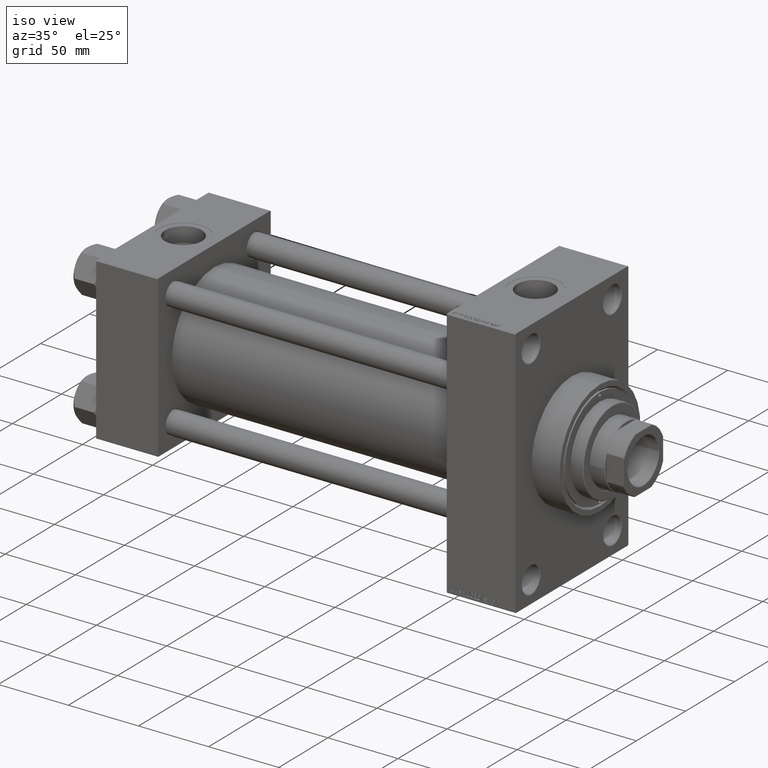
[diagram: clean part render]
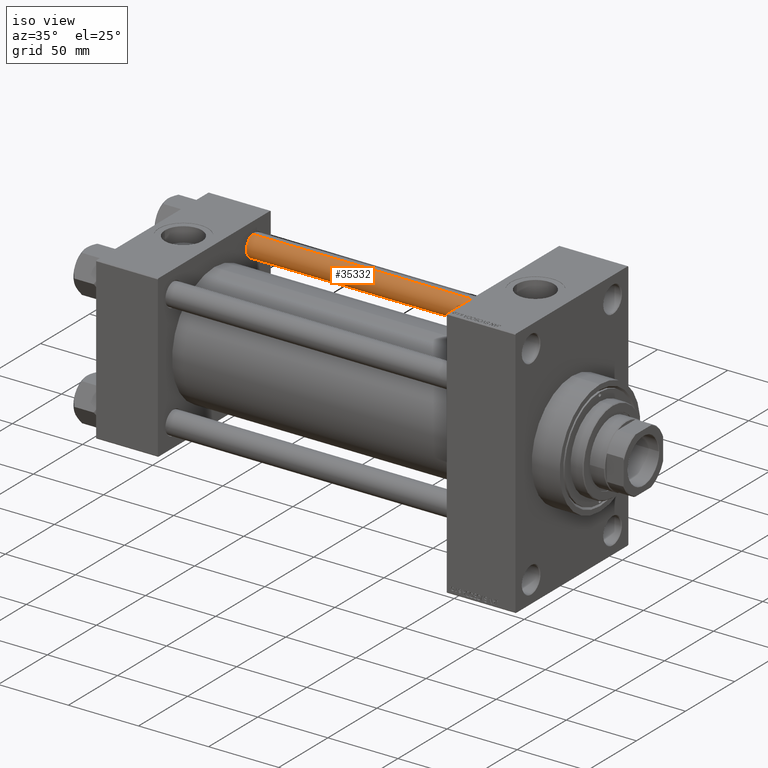
[diagram: same view with one face highlighted and labeled with its STEP entity id]
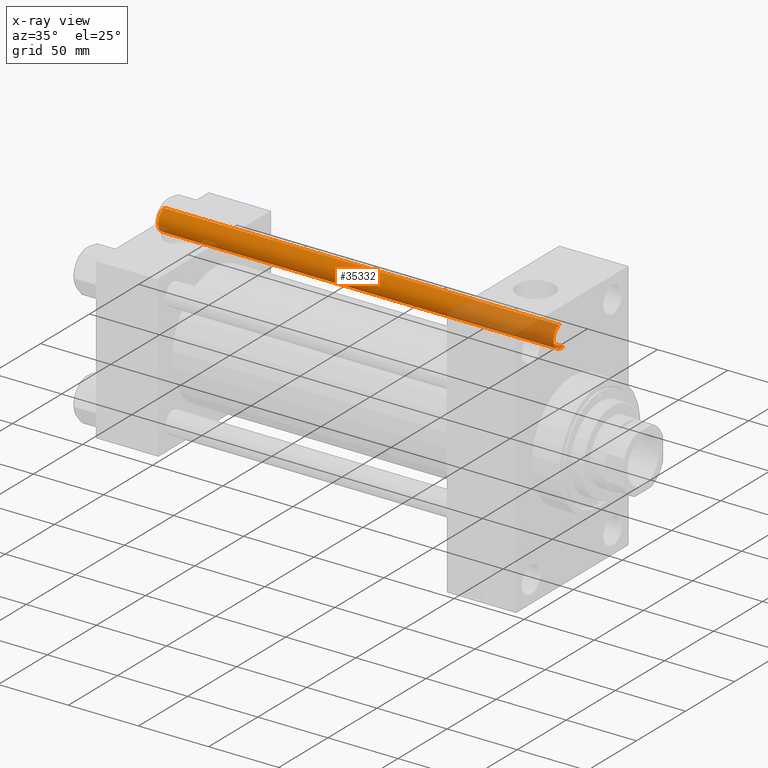
[diagram: x-ray of the same camera — body ghosted, the highlighted face saturated]
A machine part, iso view. The second image highlights one B-rep face of the part: STEP entity #35332.
The next image is the same camera in x-ray: the body ghosted, the highlighted face saturated — about 26% of this face is hidden behind the body in this view.
In plain terms, the highlighted cylindrical surface (edge-blend (fillet) strip) has radius 8 mm, axis along (-1, -0, 0).
Its self-contained STEP definition (entity closure, byte-faithful):
#1303 = DIRECTION ( 'NONE',  ( 1.000000000000000000, 0.000000000000000000, 0.000000000000000000 ) ) ;
#1760 = CARTESIAN_POINT ( 'NONE',  ( 0.000000000000000000, 0.000000000000000000, 0.5000000000000004441 ) ) ;
#3060 = ORIENTED_EDGE ( 'NONE', *, *, #23012, .T. ) ;
#3442 = AXIS2_PLACEMENT_3D ( 'NONE', #19681, #19441, #41739 ) ;
#3703 = CARTESIAN_POINT ( 'NONE',  ( -8.000000000000000000, 0.000000000000000000, 283.0000000000000000 ) ) ;
#3756 = VERTEX_POINT ( 'NONE', #20468 ) ;
#5061 = ORIENTED_EDGE ( 'NONE', *, *, #35858, .T. ) ;
#6770 = EDGE_CURVE ( 'NONE', #44884, #36688, #24465, .T. ) ;
#7850 = CYLINDRICAL_SURFACE ( 'NONE', #3442, 8.000000000000000000 ) ;
#8294 = VERTEX_POINT ( 'NONE', #16082 ) ;
#9273 = DIRECTION ( 'NONE',  ( -0.000000000000000000, -0.000000000000000000, -1.000000000000000000 ) ) ;
#12439 = ORIENTED_EDGE ( 'NONE', *, *, #6770, .T. ) ;
#13129 = CARTESIAN_POINT ( 'NONE',  ( 8.000000000000000000, 9.797174393178825657E-16, 283.0000000000000000 ) ) ;
#15561 = DIRECTION ( 'NONE',  ( -0.000000000000000000, -0.000000000000000000, 1.000000000000000000 ) ) ;
#16082 = CARTESIAN_POINT ( 'NONE',  ( -8.000000000000000000, 0.000000000000000000, 282.5000000000000000 ) ) ;
#16629 = CIRCLE ( 'NONE', #35940, 8.000000000000000000 ) ;
#19178 = DIRECTION ( 'NONE',  ( -0.000000000000000000, -0.000000000000000000, -1.000000000000000000 ) ) ;
#19441 = DIRECTION ( 'NONE',  ( -0.000000000000000000, -0.000000000000000000, -1.000000000000000000 ) ) ;
#19681 = CARTESIAN_POINT ( 'NONE',  ( 0.000000000000000000, 0.000000000000000000, 283.0000000000000000 ) ) ;
#19924 = FACE_OUTER_BOUND ( 'NONE', #31961, .T. ) ;
#20236 = ORIENTED_EDGE ( 'NONE', *, *, #41434, .F. ) ;
#20468 = CARTESIAN_POINT ( 'NONE',  ( 8.000000000000000000, 9.797174393178825657E-16, 282.5000000000000000 ) ) ;
#21694 = CARTESIAN_POINT ( 'NONE',  ( -8.000000000000000000, 0.000000000000000000, 0.5000000000000004441 ) ) ;
#23012 = EDGE_CURVE ( 'NONE', #8294, #44884, #44845, .T. ) ;
#23979 = DIRECTION ( 'NONE',  ( 0.000000000000000000, 0.000000000000000000, -1.000000000000000000 ) ) ;
#24265 = VECTOR ( 'NONE', #9273, 1000.000000000000000 ) ;
#24465 = CIRCLE ( 'NONE', #45320, 8.000000000000000000 ) ;
#24693 = CARTESIAN_POINT ( 'NONE',  ( 0.000000000000000000, 0.000000000000000000, 282.5000000000000000 ) ) ;
#27863 = CARTESIAN_POINT ( 'NONE',  ( 8.000000000000000000, 9.797174393178825657E-16, 0.5000000000000004441 ) ) ;
#31961 = EDGE_LOOP ( 'NONE', ( #20236, #5061, #3060, #12439 ) ) ;
#35332 = ADVANCED_FACE ( 'NONE', ( #19924 ), #7850, .T. ) ;
#35858 = EDGE_CURVE ( 'NONE', #3756, #8294, #16629, .T. ) ;
#35940 = AXIS2_PLACEMENT_3D ( 'NONE', #24693, #23979, #46713 ) ;
#36688 = VERTEX_POINT ( 'NONE', #27863 ) ;
#39037 = LINE ( 'NONE', #13129, #24265 ) ;
#41434 = EDGE_CURVE ( 'NONE', #3756, #36688, #39037, .T. ) ;
#41739 = DIRECTION ( 'NONE',  ( -1.000000000000000000, 0.000000000000000000, 0.000000000000000000 ) ) ;
#44845 = LINE ( 'NONE', #3703, #46465 ) ;
#44884 = VERTEX_POINT ( 'NONE', #21694 ) ;
#45320 = AXIS2_PLACEMENT_3D ( 'NONE', #1760, #15561, #1303 ) ;
#46465 = VECTOR ( 'NONE', #19178, 1000.000000000000000 ) ;
#46713 = DIRECTION ( 'NONE',  ( 1.000000000000000000, 0.000000000000000000, 0.000000000000000000 ) ) ;